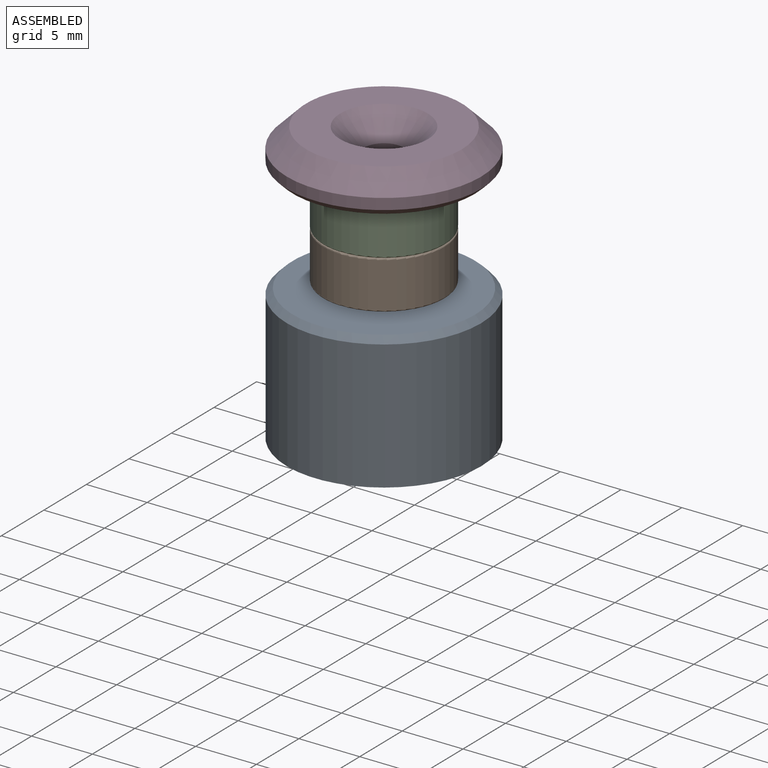
[diagram: assembled view]
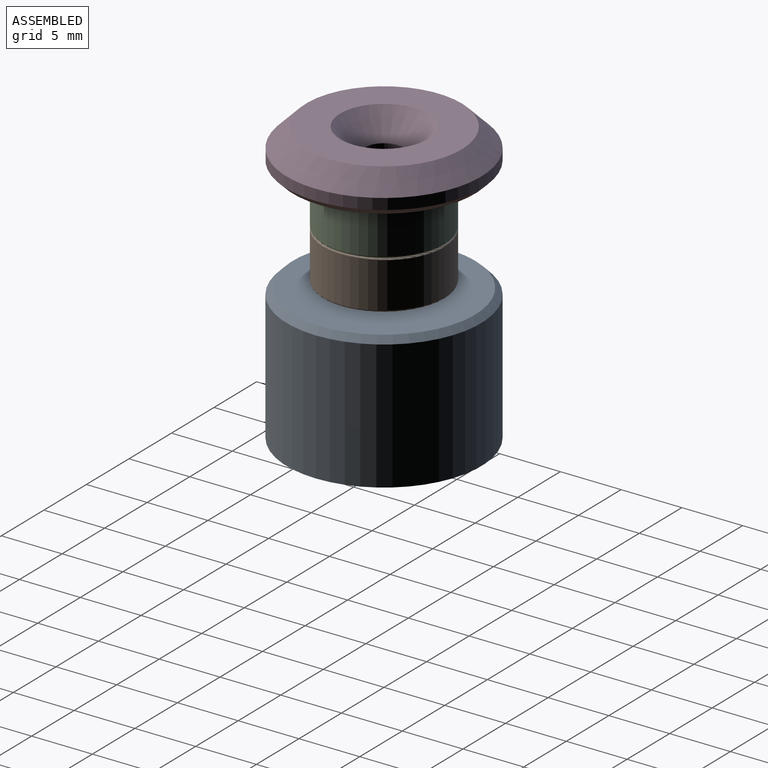
[diagram: assembled view, second angle]
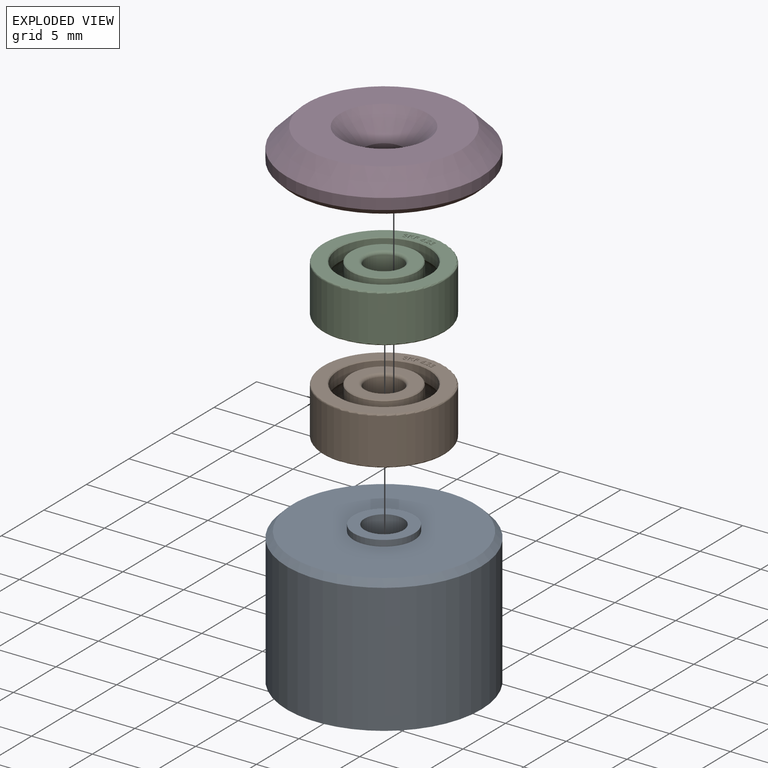
[diagram: exploded view]
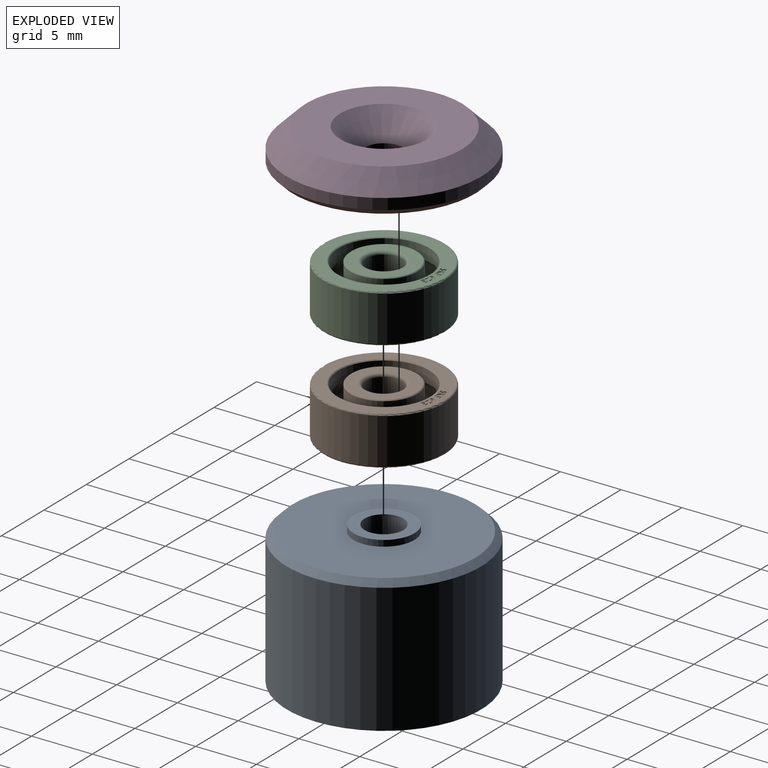
[diagram: exploded view, second angle]
ASSEMBLY  parts=4 mates=3
PART A: 7 faces, bbox 16x16x11.6 mm
  f0: plane 5x5mm, normal (0,0,1), area 11.6mm2, adj f1,f5
  f1: cylinder r=1.6mm len=11.64mm, axis (0,0,1), area 117mm2, adj f0,f2
  f2: plane 16x16mm, normal (0,0,-1), area 193mm2, adj f1,f3
  f3: cylinder r=8mm len=16mm, axis (0,0,1), area 534.8mm2, adj f2,f6
  f4: plane 15x15mm, normal (0,0,1), area 157.1mm2, adj f5,f6
  f5: cylinder r=2.5mm len=5mm, axis (0,0,1), area 7.9mm2, adj f0,f4
  f6: cone r=7.5mm half-angle=45deg, axis (0,0,-1), area 34.4mm2, adj f3,f4
PART B: 126 faces, bbox 4x10.8x10.8 mm
  f0: torus R=3.25mm, axis (1,0,0), area 4.2mm2, adj f1,f2,f3,f4
  f1: cylinder r=2.75mm len=5.5mm, axis (1,0,0), area 18.4mm2, adj f0,f2,f4,f5,f6,f7,f8,f9
  f2: sphere r=1.05mm, area 1.2mm2, adj f0,f1,f3,f9
  f3: cylinder r=2.75mm len=5.5mm, axis (1,0,0), area 18.4mm2, adj f0,f2,f4,f6,f7,f8,f9,f10
  f4: sphere r=1.05mm, area 1.2mm2, adj f0,f1,f3,f8
  f5: cone r=2.69mm half-angle=45deg, axis (-1,0,0), area 1.6mm2, adj f1,f16
  f6: torus R=3.25mm, axis (1,0,0), area 4.2mm2, adj f1,f3,f7,f14
  f7: sphere r=1.05mm, area 1.2mm2, adj f1,f3,f6,f8
  f8: torus R=3.25mm, axis (1,0,0), area 4.2mm2, adj f1,f3,f4,f7
  f9: torus R=3.25mm, axis (1,0,0), area 4.2mm2, adj f1,f2,f3,f10
  f10: sphere r=1.05mm, area 1.2mm2, adj f1,f3,f9,f11
  f11: torus R=3.25mm, axis (1,0,0), area 4.2mm2, adj f1,f3,f10,f12
  f12: sphere r=1.05mm, area 1.2mm2, adj f1,f3,f11,f13
  f13: torus R=3.25mm, axis (1,0,0), area 4.2mm2, adj f1,f3,f12,f14
  f14: sphere r=1.05mm, area 1.2mm2, adj f1,f3,f6,f13
  f15: cone r=2.75mm half-angle=45deg, axis (1,0,0), area 1.6mm2, adj f3,f17
  f16: plane 5.37x5.37mm, normal (1,0,0), area 13mm2, adj f5,f18
  f17: plane 5.37x5.37mm, normal (-1,0,0), area 13mm2, adj f15,f19
  f18: torus R=1.75mm, axis (1,0,0), area 3.9mm2, adj f16,f20
  f19: torus R=1.75mm, axis (1,0,0), area 3.9mm2, adj f17,f20
  f20: cylinder r=1.5mm len=3.5mm, axis (1,0,0), area 33mm2, adj f18,f19
  f21: sphere r=1.05mm, area 1.5mm2, adj f22,f23,f24,f25
  f22: torus R=3.25mm, axis (1,0,0), area 7.4mm2, adj f21,f23,f25,f26
  f23: cylinder r=3.75mm len=7.5mm, axis (1,0,0), area 25.1mm2, adj f21,f22,f24,f26,f27,f28,f29,f30
  f24: torus R=3.25mm, axis (1,0,0), area 7.4mm2, adj f21,f23,f25,f34
  f25: cylinder r=3.75mm len=7.5mm, axis (1,0,0), area 25.1mm2, adj f21,f22,f24,f26,f27,f28,f29,f30
  f26: sphere r=1.05mm, area 1.5mm2, adj f22,f23,f25,f27
  f27: torus R=3.25mm, axis (1,0,0), area 7.4mm2, adj f23,f25,f26,f28
  f28: sphere r=1.05mm, area 1.5mm2, adj f23,f25,f27,f29
  f29: torus R=3.25mm, axis (1,0,0), area 7.4mm2, adj f23,f25,f28,f30
  f30: sphere r=1.05mm, area 1.5mm2, adj f23,f25,f29,f31
  f31: torus R=3.25mm, axis (1,0,0), area 7.4mm2, adj f23,f25,f30,f32
  f32: sphere r=1.05mm, area 1.5mm2, adj f23,f25,f31,f33
  f33: torus R=3.25mm, axis (1,0,0), area 7.4mm2, adj f23,f25,f32,f34
  f34: sphere r=1.05mm, area 1.5mm2, adj f23,f24,f25,f33
  f35: cone r=3.81mm half-angle=45deg, axis (-1,0,0), area 2.2mm2, adj f23,f37
  f36: cone r=3.75mm half-angle=45deg, axis (1,0,0), area 2.2mm2, adj f25,f38
  f37: plane 9.75x9.75mm, normal (-1,0,0), area 28.9mm2, adj f35,f39
  f38: plane 9.75x9.75mm, normal (1,0,0), area 28.4mm2, adj f36,f40,f41,f42,f43,f44,f45,f46
  f39: torus R=4.88mm, axis (1,0,0), area 6.1mm2, adj f37,f114
  f40: torus R=4.88mm, axis (1,0,0), area 6.1mm2, adj f38,f114
  f41: plane 0.09x0.05mm, normal (0,0.99,-0.16), area 0mm2, adj f38,f42,f53,f115
  f42: extruded ~0.2x0.15mm, area 0mm2, adj f38,f41,f43,f115
  f43: extruded ~0.17x0.13mm, area 0mm2, adj f38,f42,f44,f115
  f44: extruded ~0.2x0.15mm, area 0mm2, adj f38,f43,f45,f115
  f45: plane 0.07x0.05mm, normal (0,0.8,0.6), area 0mm2, adj f38,f44,f46,f115
  f46: plane 0.18x0.05mm, normal (0,-0.99,0.16), area 0mm2, adj f38,f45,f47,f115
  f47: plane 0.09x0.05mm, normal (0,0.16,0.99), area 0mm2, adj f38,f46,f48,f115
  f48: plane 0.34x0.06mm, normal (0,0.99,-0.16), area 0mm2, adj f38,f47,f49,f115
  f49: plane 0.05x0.05mm, normal (0,-0.16,-0.99), area 0mm2, adj f38,f48,f50,f115
  f50: plane 0.18x0.13mm, normal (0,-0.81,-0.59), area 0mm2, adj f38,f49,f51,f115
  f51: extruded ~0.14x0.12mm, area 0mm2, adj f38,f50,f52,f115
  f52: cylinder r=0.06mm len=0.08mm, axis (-1,0,0), area 0mm2, adj f38,f51,f53,f115
  f53: extruded ~0.09x0.07mm, area 0mm2, adj f38,f41,f52,f115
  f54: plane 0.09x0.05mm, normal (0,0.97,-0.26), area 0mm2, adj f38,f55,f69,f116
  f55: cylinder r=0.14mm len=0.08mm, axis (1,0,0), area 0mm2, adj f38,f54,f56,f116
  f56: cylinder r=0.16mm len=0.12mm, axis (1,0,0), area 0mm2, adj f38,f55,f57,f116
  f57: extruded ~0.16x0.11mm, area 0mm2, adj f38,f56,f58,f116
  f58: extruded ~0.1x0.08mm, area 0mm2, adj f38,f57,f59,f116
  f59: extruded ~0.15x0.07mm, area 0mm2, adj f38,f58,f60,f116
  f60: extruded ~0.21x0.12mm, area 0mm2, adj f38,f59,f61,f116
  f61: extruded ~0.2x0.13mm, area 0mm2, adj f38,f60,f62,f116
  f62: plane 0.09x0.05mm, normal (0,-0.97,0.26), area 0mm2, adj f38,f61,f63,f116
  f63: extruded ~0.09x0.06mm, area 0mm2, adj f38,f62,f64,f116
  f64: cylinder r=0.07mm len=0.09mm, axis (-1,0,0), area 0mm2, adj f38,f63,f65,f116
  f65: extruded ~0.11x0.09mm, area 0mm2, adj f38,f64,f66,f116
  f66: plane 0.08x0.05mm, normal (0,-0.26,-0.97), area 0mm2, adj f38,f65,f67,f116
  f67: extruded ~0.1x0.05mm, area 0mm2, adj f38,f66,f68,f116
  f68: cylinder r=0.05mm len=0.06mm, axis (-1,0,0), area 0mm2, adj f38,f67,f69,f116
  f69: cylinder r=0.06mm len=0.07mm, axis (-1,0,0), area 0mm2, adj f38,f54,f68,f116
  f70: plane 0.16x0.1mm, normal (0,0.51,0.86), area 0mm2, adj f38,f71,f76,f117
  f71: extruded ~0.17x0.14mm, area 0mm2, adj f38,f70,f72,f117
  f72: extruded ~0.17x0.15mm, area 0mm2, adj f38,f71,f73,f117
  f73: extruded ~0.16x0.15mm, area 0mm2, adj f38,f72,f74,f117
  f74: extruded ~0.12x0.05mm, area 0mm2, adj f38,f73,f75,f117
  f75: plane 0.24x0.14mm, normal (0,-0.51,-0.86), area 0mm2, adj f38,f74,f76,f117
  f76: plane 0.08x0.05mm, normal (0,-0.86,0.51), area 0mm2, adj f38,f70,f75,f117
  f77: plane 0.09x0.05mm, normal (0,-0.07,1), area 0mm2, adj f38,f78,f86,f118
  f78: plane 0.15x0.05mm, normal (0,1,0.07), area 0mm2, adj f38,f77,f79,f118
  f79: plane 0.09x0.05mm, normal (0,-0.07,1), area 0mm2, adj f38,f78,f80,f118
  f80: plane 0.15x0.05mm, normal (0,-1,-0.07), area 0mm2, adj f38,f79,f81,f118
  f81: plane 0.09x0.05mm, normal (0,-0.07,1), area 0mm2, adj f38,f80,f82,f118
  f82: plane 0.15x0.05mm, normal (0,1,0.07), area 0mm2, adj f38,f81,f83,f118
  f83: plane 0.22x0.05mm, normal (0,-0.07,1), area 0mm2, adj f38,f82,f84,f118
  f84: plane 0.09x0.05mm, normal (0,1,0.07), area 0mm2, adj f38,f83,f85,f118
  f85: plane 0.5x0.05mm, normal (0,0.07,-1), area 0mm2, adj f38,f84,f86,f118
  f86: plane 0.25x0.05mm, normal (0,-1,-0.07), area 0mm2, adj f38,f77,f85,f118
  f87: plane 0.17x0.05mm, normal (0,-0.17,0.99), area 0mm2, adj f38,f88,f97,f119
  f88: plane 0.19x0.1mm, normal (0,-0.48,-0.88), area 0mm2, adj f38,f87,f89,f119
  f89: plane 0.11x0.05mm, normal (0,-0.99,-0.17), area 0mm2, adj f38,f88,f90,f119
  f90: plane 0.25x0.13mm, normal (0,0.48,0.88), area 0mm2, adj f38,f89,f91,f119
  f91: plane 0.24x0.23mm, normal (0,-0.7,0.72), area 0mm2, adj f38,f90,f92,f119
  f92: plane 0.11x0.05mm, normal (0,0.99,0.17), area 0mm2, adj f38,f91,f93,f119
  f93: plane 0.19x0.19mm, normal (0,0.7,-0.71), area 0mm2, adj f38,f92,f94,f119
  f94: plane 0.22x0.05mm, normal (0,-0.17,0.99), area 0mm2, adj f38,f93,f95,f119
  f95: plane 0.09x0.05mm, normal (0,0.99,0.17), area 0mm2, adj f38,f94,f96,f119
  f96: plane 0.49x0.08mm, normal (0,0.17,-0.99), area 0mm2, adj f38,f95,f97,f119
  f97: plane 0.09x0.05mm, normal (0,-0.99,-0.17), area 0mm2, adj f38,f87,f96,f119
  f98: plane 0.08x0.05mm, normal (0,0.55,0.84), area 0mm2, adj f38,f99,f113,f120
  f99: extruded ~0.09x0.05mm, area 0mm2, adj f38,f98,f100,f120
  f100: extruded ~0.05x0.04mm, area 0mm2, adj f38,f99,f101,f120
  f101: cylinder r=0.04mm len=0.05mm, axis (-1,0,0), area 0mm2, adj f38,f100,f102,f120
  f102: extruded ~0.08x0.05mm, area 0mm2, adj f38,f101,f103,f120
  f103: extruded ~0.08x0.05mm, area 0mm2, adj f38,f102,f104,f120
  f104: extruded ~0.1x0.08mm, area 0mm2, adj f38,f103,f105,f120
  f105: extruded ~0.18x0.12mm, area 0mm2, adj f38,f104,f106,f120
  f106: extruded ~0.18x0.07mm, area 0mm2, adj f38,f105,f107,f120
  f107: plane 0.07x0.06mm, normal (0,-0.69,-0.72), area 0mm2, adj f38,f106,f108,f120
  f108: extruded ~0.1x0.05mm, area 0mm2, adj f38,f107,f109,f120
  f109: extruded ~0.06x0.05mm, area 0mm2, adj f38,f108,f110,f120
  f110: extruded ~0.09x0.06mm, area 0mm2, adj f38,f109,f111,f120
  f111: extruded ~0.17x0.13mm, area 0mm2, adj f38,f110,f112,f120
  f112: extruded ~0.16x0.1mm, area 0mm2, adj f38,f111,f113,f120
  f113: extruded ~0.16x0.05mm, area 0mm2, adj f38,f98,f112,f120
  f114: cylinder r=5mm len=10mm, axis (1,0,0), area 117.8mm2, adj f39,f40
  f115: plane 0.53x0.4mm, normal (1,0,0), area 0.1mm2, adj f41,f42,f43,f44,f45,f46,f47,f48
  f116: plane 0.52x0.37mm, normal (1,0,0), area 0.1mm2, adj f54,f55,f56,f57,f58,f59,f60,f61
  f117: plane 0.52x0.31mm, normal (1,0,0), area 0.1mm2, adj f70,f71,f72,f73,f74,f75,f76,f121
  f118: plane 0.52x0.27mm, normal (1,0,0), area 0.1mm2, adj f77,f78,f79,f80,f81,f82,f83,f84
  f119: plane 0.55x0.44mm, normal (1,0,0), area 0.1mm2, adj f87,f88,f89,f90,f91,f92,f93,f94
  f120: plane 0.52x0.36mm, normal (1,0,0), area 0.1mm2, adj f98,f99,f100,f101,f102,f103,f104,f105
  f121: extruded ~0.07x0.06mm, area 0mm2, adj f117,f122,f124,f125
  f122: cylinder r=0.06mm len=0.07mm, axis (1,0,0), area 0mm2, adj f117,f121,f123,f125
  f123: extruded ~0.07x0.06mm, area 0mm2, adj f117,f122,f124,f125
  f124: cylinder r=0.07mm len=0.07mm, axis (1,0,0), area 0mm2, adj f117,f121,f123,f125
  f125: plane 0.14x0.13mm, normal (1,0,0), area 0mm2, adj f121,f122,f123,f124
PART C: same geometry as B
PART D: 9 faces, bbox 16x16x3.5 mm
  f0: plane 12.8x12.8mm, normal (0,0,1), area 88mm2, adj f6,f7
  f1: cylinder r=1.6mm len=3.2mm, axis (0,0,1), area 15.1mm2, adj f2,f6
  f2: plane 5x5mm, normal (0,0,-1), area 11.6mm2, adj f1,f3
  f3: cylinder r=2.5mm len=5mm, axis (0,0,1), area 7.9mm2, adj f2,f4
  f4: plane 15x15mm, normal (0,0,-1), area 157.1mm2, adj f3,f8
  f5: cylinder r=8mm len=16mm, axis (0,0,1), area 45.2mm2, adj f7,f8
  f6: cone r=1.6mm half-angle=45deg, axis (0,0,1), area 46.2mm2, adj f0,f1
  f7: cone r=6.4mm half-angle=45deg, axis (0,0,-1), area 102.4mm2, adj f0,f5
  f8: cone r=8mm half-angle=45deg, axis (0,0,1), area 34.4mm2, adj f4,f5
PLACE A at identity
PLACE B rot(axis=(0,-1,0),90deg) t=(0,0,4.5)mm
PLACE C rot(axis=(0,-1,0),90deg) t=(0,0,8.5)mm
PLACE D at identity
MATE revolute C.f0 <-> D.f1  axis (0,0,1) through (0,0,8.5)mm
MATE revolute B.f0 <-> C.f0  axis (0,0,1) through (0,0,4.5)mm
MATE revolute B.f0 <-> A.f1  axis (0,0,-1) through (0,0,0.5)mm
